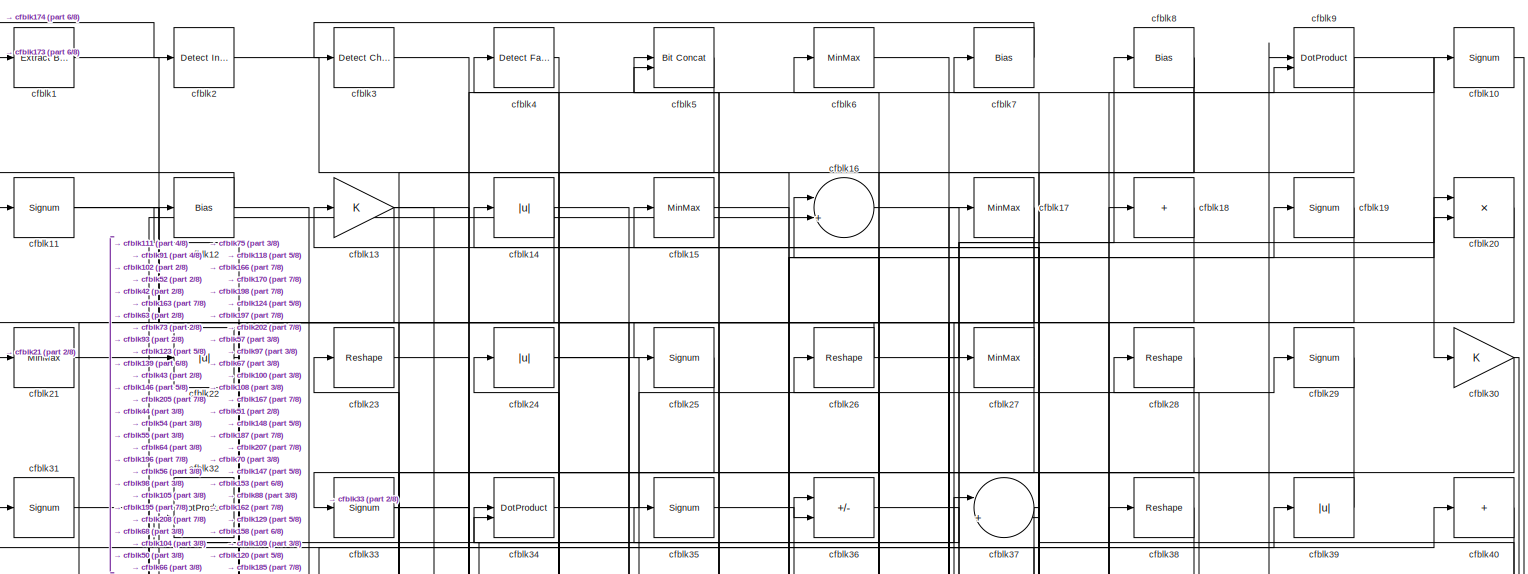
[diagram: root canvas - part 1/8, full width, top band]
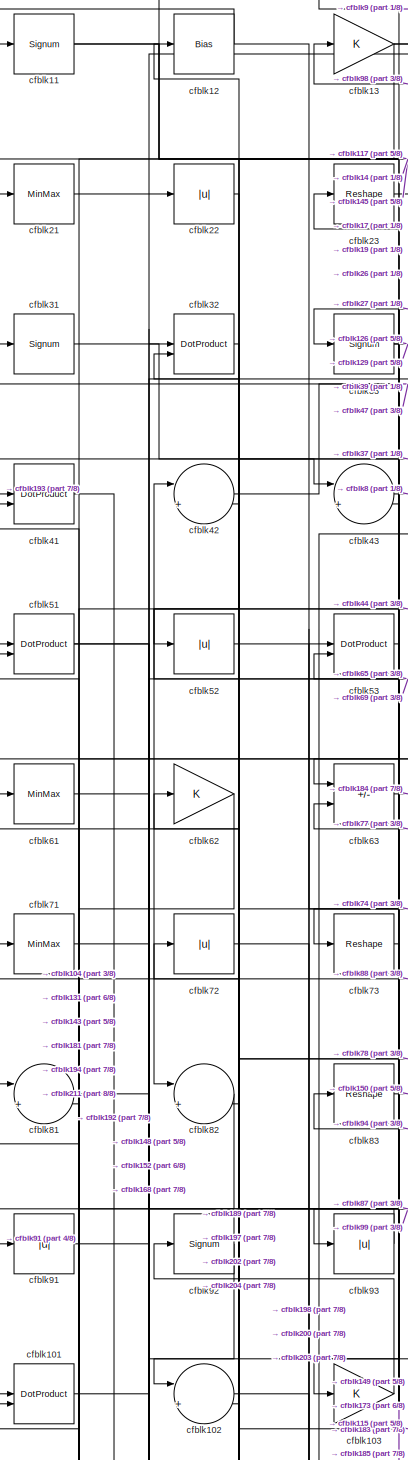
[diagram: root canvas - part 2/8, top left region]
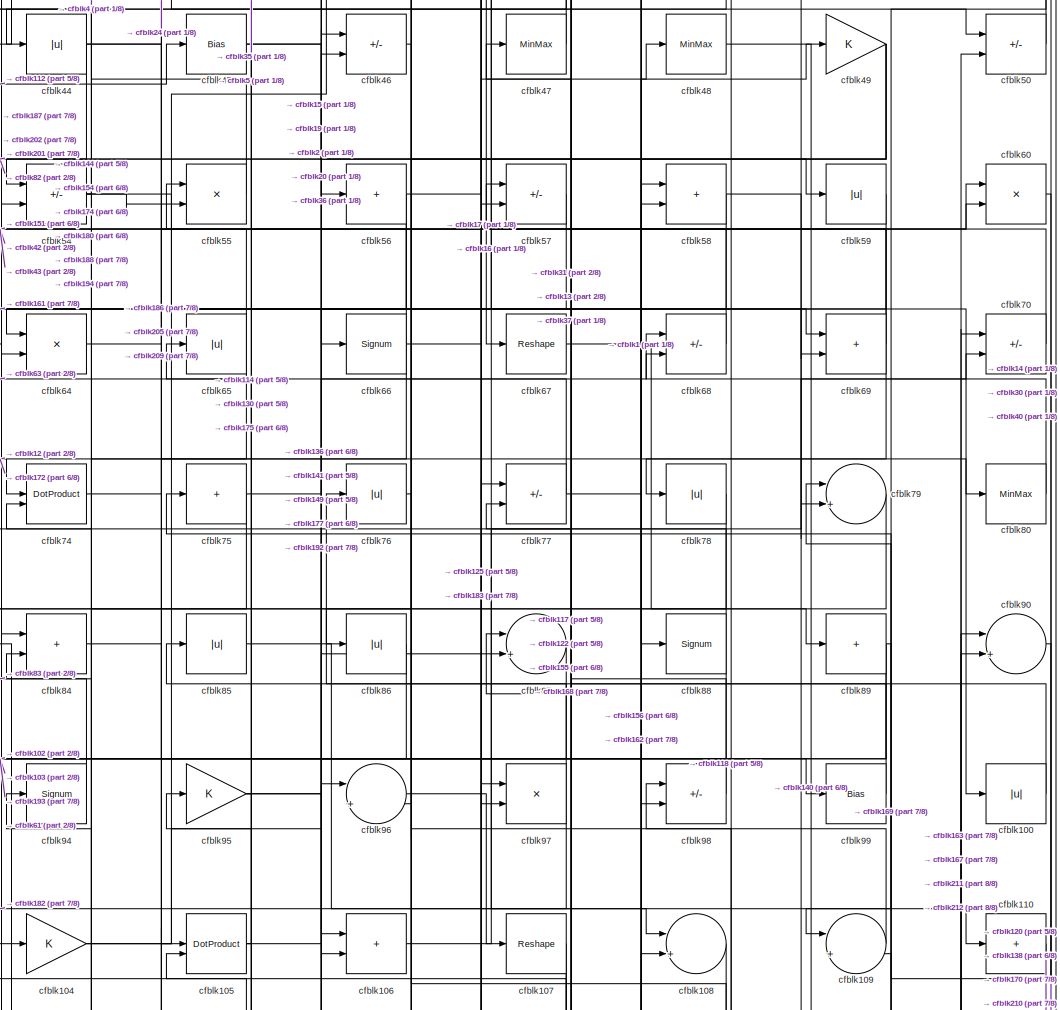
[diagram: root canvas - part 3/8, central region]
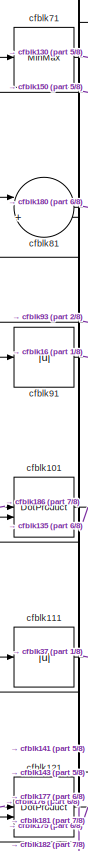
[diagram: root canvas - part 4/8, middle left region]
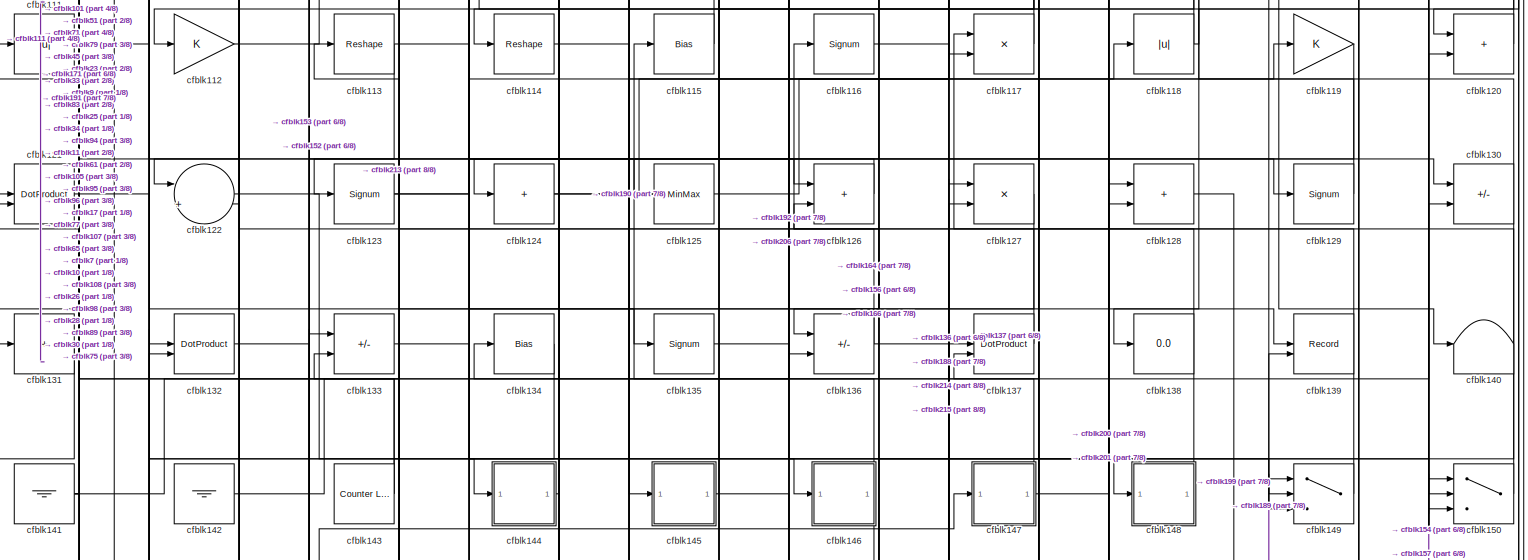
[diagram: root canvas - part 5/8, full width, middle band]
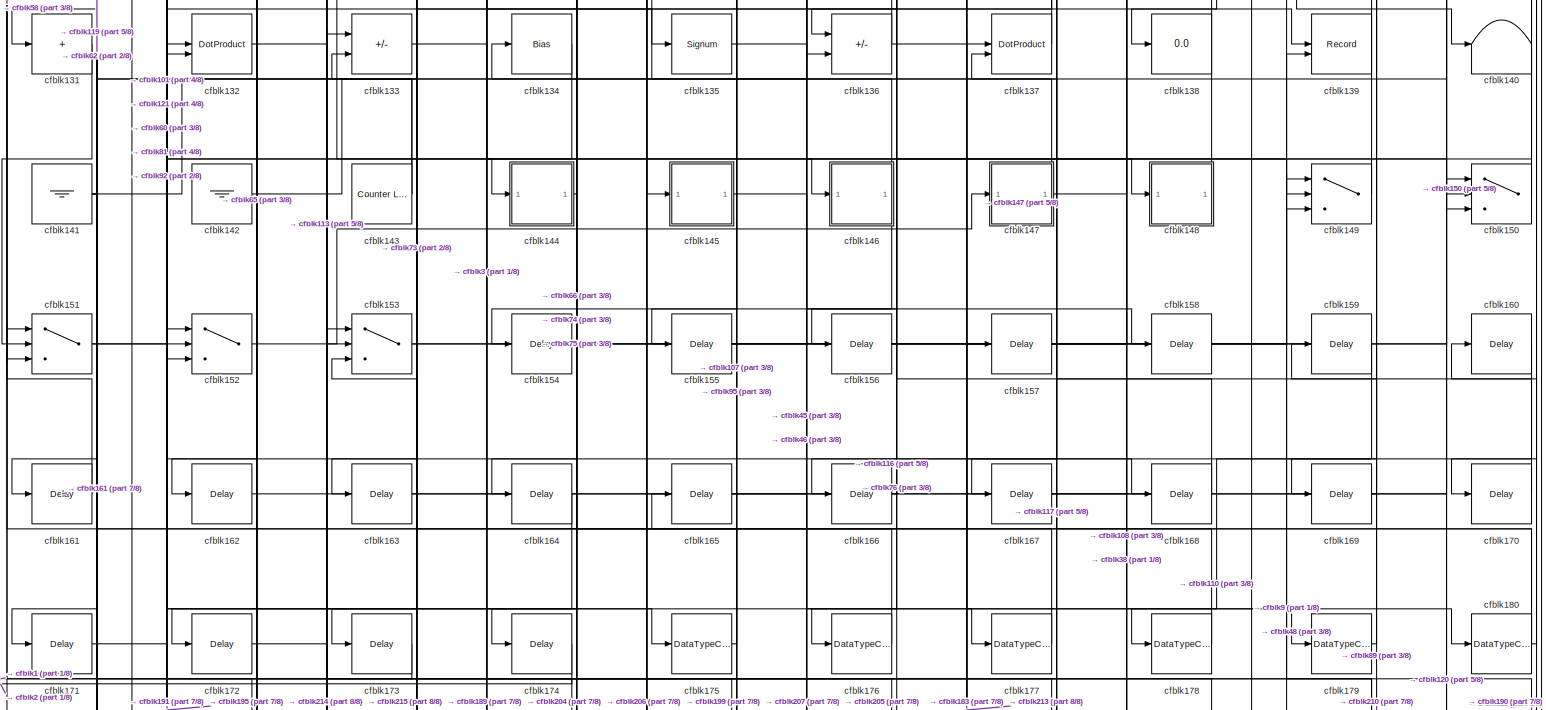
[diagram: root canvas - part 6/8, full width, bottom band]
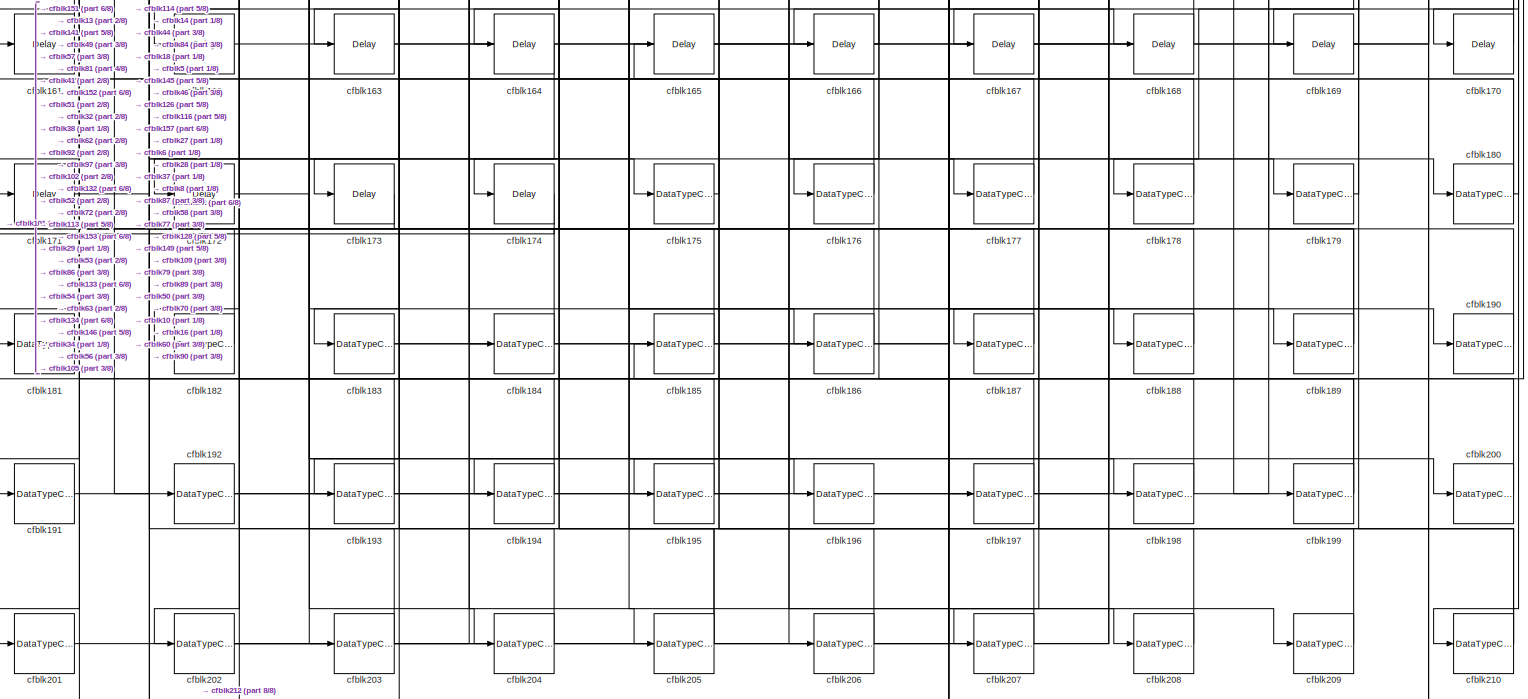
[diagram: root canvas - part 7/8, full width, bottom band]
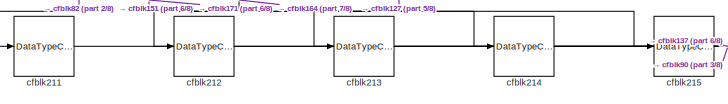
[diagram: root canvas - part 8/8, bottom left region]
MODEL slx_5d433ac98d97
KIND model
CONFIG AbsTol = auto
CONFIG EnableMultiTasking = off
CONFIG FixedStep = auto
CONFIG MaxStep = auto
CONFIG MinStep = auto
CONFIG RelTol = 1e-3
CONFIG SampleTimeConstraint = Unconstrained
CONFIG SolverName = VariableStepAuto
CONFIG StartTime = 0.0
CONFIG StopTime = 10.0
BLOCK [Reference] cfblk1  REF=simulink/Logic and Bit
Operations/Extract Bits
  LibrarySourceBlock = hdlsllib/Logic and Bit\nOperations/Extract Bits
  SourceBlock = simulink/Logic and Bit\nOperations/Extract Bits
  SourceType = Extract Bits
BLOCK [Signum] cfblk10
BLOCK [Abs] cfblk100
  SaturateOnIntegerOverflow = off
BLOCK [DotProduct] cfblk101
  OutDataTypeStr = Inherit: Inherit via internal rule
BLOCK [Sum] cfblk102
  Inputs = |++
BLOCK [Gain] cfblk103
BLOCK [Gain] cfblk104
BLOCK [DotProduct] cfblk105
  OutDataTypeStr = Inherit: Inherit via internal rule
BLOCK [Sum] cfblk106
  IconShape = rectangular
BLOCK [Reshape] cfblk107
BLOCK [Sum] cfblk108
  Inputs = |++
BLOCK [Sum] cfblk109
  Inputs = |++
BLOCK [Signum] cfblk11
BLOCK [Sum] cfblk110
  IconShape = rectangular
  Inputs = +
BLOCK [Abs] cfblk111
  SaturateOnIntegerOverflow = off
BLOCK [Gain] cfblk112
BLOCK [Reshape] cfblk113
BLOCK [Reshape] cfblk114
BLOCK [Bias] cfblk115
  Bias = 0.0
  SaturateOnIntegerOverflow = off
BLOCK [Signum] cfblk116
BLOCK [Product] cfblk117
  Inputs = */
  RndMeth = Zero
  SaturateOnIntegerOverflow = on
BLOCK [Abs] cfblk118
  SaturateOnIntegerOverflow = off
BLOCK [Gain] cfblk119
BLOCK [Bias] cfblk12
  Bias = 0.0
  SaturateOnIntegerOverflow = off
BLOCK [Sum] cfblk120
  IconShape = rectangular
BLOCK [DotProduct] cfblk121
  OutDataTypeStr = Inherit: Inherit via internal rule
BLOCK [Sum] cfblk122
  Inputs = |++
BLOCK [Signum] cfblk123
BLOCK [Sum] cfblk124
  IconShape = rectangular
  Inputs = +
BLOCK [MinMax] cfblk125
BLOCK [Sum] cfblk126
  IconShape = rectangular
BLOCK [Product] cfblk127
  Inputs = */
  RndMeth = Zero
  SaturateOnIntegerOverflow = on
BLOCK [Sum] cfblk128
  IconShape = rectangular
BLOCK [Signum] cfblk129
BLOCK [Gain] cfblk13
BLOCK [Sum] cfblk130
  IconShape = rectangular
  Inputs = +-
BLOCK [Sum] cfblk131
  IconShape = rectangular
  Inputs = +
BLOCK [DotProduct] cfblk132
  OutDataTypeStr = Inherit: Inherit via internal rule
BLOCK [Sum] cfblk133
  IconShape = rectangular
  Inputs = +-
BLOCK [Bias] cfblk134
  Bias = 0.0
  SaturateOnIntegerOverflow = off
BLOCK [Signum] cfblk135
BLOCK [Sum] cfblk136
  IconShape = rectangular
  Inputs = +-
BLOCK [DotProduct] cfblk137
  OutDataTypeStr = Inherit: Inherit via internal rule
BLOCK [Display] cfblk138
  Decimation = 1
BLOCK [Record] cfblk139
  CompatibilityTag = XY
  FileSettingsInternal = {"entries":[{"content":{"excelSettings":{"content":{},"type":"Streamout.ExcelSettings"}},"type":"Streamout.FileSettingStorage","uuid":""}],"packageUris":["http:\/\/schema.mathworks.com\/mf0\/streamout_blocks\/R2020a"],"version":"1.0"}
  Layout = [1 1]
  SignalsInternal = {"entries":[{"content":{"signals":[{"content":{"blockPath":[],"dimensions":[1],"domain":"","lineColor":"#a2142f","plots":[1],"port":1,"signalID":2556,"signalName":"XY Graph:1"},"type":"RecordBlkView.Signal","uuid":""},{"content":{"blockPath":[],"dimensions":[1],"domain":"","lineColor":"#139fff","plots":[1],"port":2,"signalID":2559,"signalName":"XY Graph:2"},"type":"RecordBlkView.Signal","uuid":""}...<+146ch>
  VisualizationBindings = {"xyplotplugin":{"info":[{"series":[{"bindingParametersList":[{"parameter":"X-Axis","signalID":2556,"signalName":"XY Graph:1"},{"parameter":"Y-Axis","signalID":2559,"signalName":"XY Graph:2"}],"seriesID":63475}],"subplotID":1}]}}
  st = -1
BLOCK [Abs] cfblk14
  SaturateOnIntegerOverflow = off
BLOCK [Terminator] cfblk140
BLOCK [Ground] cfblk141
BLOCK [Ground] cfblk142
BLOCK [Reference] cfblk143  REF=hdlsllib/Sources/Counter
Limited
  SourceBlock = hdlsllib/Sources/Counter\nLimited
  SourceType = Counter Limited
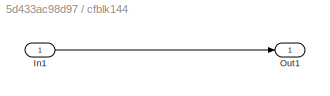
BLOCK [SubSystem] cfblk144
  LibrarySourceBlock = hdlsllib/Ports &\nSubsystems/Subsystem
BLOCK [Inport] cfblk144/In1
BLOCK [Outport] cfblk144/Out1
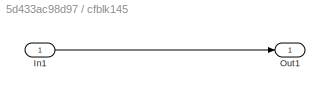
BLOCK [SubSystem] cfblk145
  LibrarySourceBlock = hdlsllib/Ports &\nSubsystems/Subsystem
BLOCK [Inport] cfblk145/In1
BLOCK [Outport] cfblk145/Out1
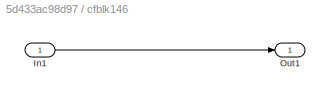
BLOCK [SubSystem] cfblk146
  LibrarySourceBlock = hdlsllib/Ports &\nSubsystems/Subsystem
BLOCK [Inport] cfblk146/In1
BLOCK [Outport] cfblk146/Out1
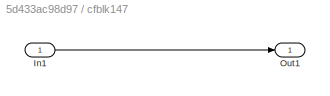
BLOCK [SubSystem] cfblk147
  LibrarySourceBlock = hdlsllib/Ports &\nSubsystems/Subsystem
BLOCK [Inport] cfblk147/In1
BLOCK [Outport] cfblk147/Out1
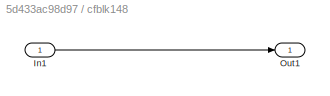
BLOCK [SubSystem] cfblk148
  LibrarySourceBlock = hdlsllib/Ports &\nSubsystems/Subsystem
BLOCK [Inport] cfblk148/In1
BLOCK [Outport] cfblk148/Out1
BLOCK [Switch] cfblk149
  InputSameDT = off
  SaturateOnIntegerOverflow = off
BLOCK [MinMax] cfblk15
BLOCK [Switch] cfblk150
  InputSameDT = off
  SaturateOnIntegerOverflow = off
BLOCK [Switch] cfblk151
  InputSameDT = off
  SaturateOnIntegerOverflow = off
BLOCK [Switch] cfblk152
  InputSameDT = off
  SaturateOnIntegerOverflow = off
BLOCK [Switch] cfblk153
  InputSameDT = off
  SaturateOnIntegerOverflow = off
BLOCK [Delay] cfblk154
  InputPortMap = u0
  SampleTime = 1
BLOCK [Delay] cfblk155
  InputPortMap = u0
  SampleTime = 1
BLOCK [Delay] cfblk156
  InputPortMap = u0
  SampleTime = 1
BLOCK [Delay] cfblk157
  InputPortMap = u0
  SampleTime = 1
BLOCK [Delay] cfblk158
  InputPortMap = u0
  SampleTime = 1
BLOCK [Delay] cfblk159
  InputPortMap = u0
  SampleTime = 1
BLOCK [Sum] cfblk16
  Inputs = |++
BLOCK [Delay] cfblk160
  InputPortMap = u0
  SampleTime = 1
BLOCK [Delay] cfblk161
  InputPortMap = u0
  SampleTime = 1
BLOCK [Delay] cfblk162
  InputPortMap = u0
  SampleTime = 1
BLOCK [Delay] cfblk163
  InputPortMap = u0
  SampleTime = 1
BLOCK [Delay] cfblk164
  InputPortMap = u0
  SampleTime = 1
BLOCK [Delay] cfblk165
  InputPortMap = u0
  SampleTime = 1
BLOCK [Delay] cfblk166
  InputPortMap = u0
  SampleTime = 1
BLOCK [Delay] cfblk167
  InputPortMap = u0
  SampleTime = 1
BLOCK [Delay] cfblk168
  InputPortMap = u0
  SampleTime = 1
BLOCK [Delay] cfblk169
  InputPortMap = u0
  SampleTime = 1
BLOCK [MinMax] cfblk17
BLOCK [Delay] cfblk170
  InputPortMap = u0
  SampleTime = 1
BLOCK [Delay] cfblk171
  InputPortMap = u0
  SampleTime = 1
BLOCK [Delay] cfblk172
  InputPortMap = u0
  SampleTime = 1
BLOCK [Delay] cfblk173
  InputPortMap = u0
  SampleTime = 1
BLOCK [Delay] cfblk174
  InputPortMap = u0
  SampleTime = 1
BLOCK [DataTypeConversion] cfblk175
  OutDataTypeStr = uint8
  RndMeth = Floor
  SaturateOnIntegerOverflow = off
BLOCK [DataTypeConversion] cfblk176
  OutDataTypeStr = uint8
  RndMeth = Floor
  SaturateOnIntegerOverflow = off
BLOCK [DataTypeConversion] cfblk177
  OutDataTypeStr = uint8
  RndMeth = Floor
  SaturateOnIntegerOverflow = off
BLOCK [DataTypeConversion] cfblk178
  OutDataTypeStr = uint8
  RndMeth = Floor
  SaturateOnIntegerOverflow = off
BLOCK [DataTypeConversion] cfblk179
  OutDataTypeStr = uint8
  RndMeth = Floor
  SaturateOnIntegerOverflow = off
BLOCK [Sum] cfblk18
  IconShape = rectangular
  Inputs = +
BLOCK [DataTypeConversion] cfblk180
  RndMeth = Floor
  SaturateOnIntegerOverflow = off
BLOCK [DataTypeConversion] cfblk181
  OutDataTypeStr = uint8
  RndMeth = Floor
  SaturateOnIntegerOverflow = off
BLOCK [DataTypeConversion] cfblk182
  OutDataTypeStr = uint8
  RndMeth = Floor
  SaturateOnIntegerOverflow = off
BLOCK [DataTypeConversion] cfblk183
  RndMeth = Floor
  SaturateOnIntegerOverflow = off
BLOCK [DataTypeConversion] cfblk184
  OutDataTypeStr = uint8
  RndMeth = Floor
  SaturateOnIntegerOverflow = off
BLOCK [DataTypeConversion] cfblk185
  OutDataTypeStr = uint8
  RndMeth = Floor
  SaturateOnIntegerOverflow = off
BLOCK [DataTypeConversion] cfblk186
  OutDataTypeStr = uint8
  RndMeth = Floor
  SaturateOnIntegerOverflow = off
BLOCK [DataTypeConversion] cfblk187
  OutDataTypeStr = uint8
  RndMeth = Floor
  SaturateOnIntegerOverflow = off
BLOCK [DataTypeConversion] cfblk188
  OutDataTypeStr = uint8
  RndMeth = Floor
  SaturateOnIntegerOverflow = off
BLOCK [DataTypeConversion] cfblk189
  RndMeth = Floor
  SaturateOnIntegerOverflow = off
BLOCK [Signum] cfblk19
BLOCK [DataTypeConversion] cfblk190
  OutDataTypeStr = uint8
  RndMeth = Floor
  SaturateOnIntegerOverflow = off
BLOCK [DataTypeConversion] cfblk191
  OutDataTypeStr = uint8
  RndMeth = Floor
  SaturateOnIntegerOverflow = off
BLOCK [DataTypeConversion] cfblk192
  RndMeth = Floor
  SaturateOnIntegerOverflow = off
BLOCK [DataTypeConversion] cfblk193
  OutDataTypeStr = uint8
  RndMeth = Floor
  SaturateOnIntegerOverflow = off
BLOCK [DataTypeConversion] cfblk194
  OutDataTypeStr = uint8
  RndMeth = Floor
  SaturateOnIntegerOverflow = off
BLOCK [DataTypeConversion] cfblk195
  OutDataTypeStr = uint8
  RndMeth = Floor
  SaturateOnIntegerOverflow = off
BLOCK [DataTypeConversion] cfblk196
  OutDataTypeStr = uint8
  RndMeth = Floor
  SaturateOnIntegerOverflow = off
BLOCK [DataTypeConversion] cfblk197
  OutDataTypeStr = uint8
  RndMeth = Floor
  SaturateOnIntegerOverflow = off
BLOCK [DataTypeConversion] cfblk198
  OutDataTypeStr = uint8
  RndMeth = Floor
  SaturateOnIntegerOverflow = off
BLOCK [DataTypeConversion] cfblk199
  RndMeth = Floor
  SaturateOnIntegerOverflow = off
BLOCK [Reference] cfblk2  REF=simulink/Logic and Bit
Operations/Detect
Increase
  LibrarySourceBlock = hdlsllib/Logic and Bit\nOperations/Detect\nIncrease
  SourceBlock = simulink/Logic and Bit\nOperations/Detect\nIncrease
  SourceType = Detect Increase
BLOCK [Product] cfblk20
  Inputs = */
  RndMeth = Zero
  SaturateOnIntegerOverflow = on
BLOCK [DataTypeConversion] cfblk200
  OutDataTypeStr = uint8
  RndMeth = Floor
  SaturateOnIntegerOverflow = off
BLOCK [DataTypeConversion] cfblk201
  OutDataTypeStr = uint8
  RndMeth = Floor
  SaturateOnIntegerOverflow = off
BLOCK [DataTypeConversion] cfblk202
  RndMeth = Floor
  SaturateOnIntegerOverflow = off
BLOCK [DataTypeConversion] cfblk203
  OutDataTypeStr = uint8
  RndMeth = Floor
  SaturateOnIntegerOverflow = off
BLOCK [DataTypeConversion] cfblk204
  OutDataTypeStr = uint8
  RndMeth = Floor
  SaturateOnIntegerOverflow = off
BLOCK [DataTypeConversion] cfblk205
  RndMeth = Floor
  SaturateOnIntegerOverflow = off
BLOCK [DataTypeConversion] cfblk206
  OutDataTypeStr = uint8
  RndMeth = Floor
  SaturateOnIntegerOverflow = off
BLOCK [DataTypeConversion] cfblk207
  OutDataTypeStr = uint8
  RndMeth = Floor
  SaturateOnIntegerOverflow = off
BLOCK [DataTypeConversion] cfblk208
  OutDataTypeStr = uint8
  RndMeth = Floor
  SaturateOnIntegerOverflow = off
BLOCK [DataTypeConversion] cfblk209
  OutDataTypeStr = uint8
  RndMeth = Floor
  SaturateOnIntegerOverflow = off
BLOCK [MinMax] cfblk21
BLOCK [DataTypeConversion] cfblk210
  RndMeth = Floor
  SaturateOnIntegerOverflow = off
BLOCK [DataTypeConversion] cfblk211
  OutDataTypeStr = uint8
  RndMeth = Floor
  SaturateOnIntegerOverflow = off
BLOCK [DataTypeConversion] cfblk212
  OutDataTypeStr = uint8
  RndMeth = Floor
  SaturateOnIntegerOverflow = off
BLOCK [DataTypeConversion] cfblk213
  OutDataTypeStr = uint8
  RndMeth = Floor
  SaturateOnIntegerOverflow = off
BLOCK [DataTypeConversion] cfblk214
  OutDataTypeStr = uint8
  RndMeth = Floor
  SaturateOnIntegerOverflow = off
BLOCK [DataTypeConversion] cfblk215
  OutDataTypeStr = uint8
  RndMeth = Floor
  SaturateOnIntegerOverflow = off
BLOCK [Abs] cfblk22
  SaturateOnIntegerOverflow = off
BLOCK [Reshape] cfblk23
BLOCK [Abs] cfblk24
  SaturateOnIntegerOverflow = off
BLOCK [Signum] cfblk25
BLOCK [Reshape] cfblk26
BLOCK [MinMax] cfblk27
BLOCK [Reshape] cfblk28
BLOCK [Signum] cfblk29
BLOCK [Reference] cfblk3  REF=simulink/Logic and Bit
Operations/Detect
Change
  LibrarySourceBlock = hdlsllib/Logic and Bit\nOperations/Detect\nChange
  SourceBlock = simulink/Logic and Bit\nOperations/Detect\nChange
  SourceType = Detect Change
BLOCK [Gain] cfblk30
BLOCK [Signum] cfblk31
BLOCK [DotProduct] cfblk32
  OutDataTypeStr = Inherit: Inherit via internal rule
BLOCK [Signum] cfblk33
BLOCK [DotProduct] cfblk34
  OutDataTypeStr = Inherit: Inherit via internal rule
BLOCK [Signum] cfblk35
BLOCK [Sum] cfblk36
  IconShape = rectangular
  Inputs = +-
BLOCK [Sum] cfblk37
  Inputs = |++
BLOCK [Reshape] cfblk38
BLOCK [Abs] cfblk39
  SaturateOnIntegerOverflow = off
BLOCK [Reference] cfblk4  REF=hdlsllib/Logic and Bit
Operations/Detect Fall
Negative
  SourceBlock = hdlsllib/Logic and Bit\nOperations/Detect Fall\nNegative
  SourceType = Detect Fall Negative
BLOCK [Sum] cfblk40
  IconShape = rectangular
  Inputs = +
BLOCK [DotProduct] cfblk41
  OutDataTypeStr = Inherit: Inherit via internal rule
BLOCK [Sum] cfblk42
  Inputs = |++
BLOCK [Sum] cfblk43
  Inputs = |++
BLOCK [Abs] cfblk44
  SaturateOnIntegerOverflow = off
BLOCK [Bias] cfblk45
  Bias = 0.0
  SaturateOnIntegerOverflow = off
BLOCK [Sum] cfblk46
  IconShape = rectangular
  Inputs = +-
BLOCK [MinMax] cfblk47
BLOCK [MinMax] cfblk48
BLOCK [Gain] cfblk49
BLOCK [Reference] cfblk5  REF=hdlsllib/Logic and Bit
Operations/Bit Concat
  SourceBlock = hdlsllib/Logic and Bit\nOperations/Bit Concat
  SourceType = Bit Concat
BLOCK [Sum] cfblk50
  IconShape = rectangular
  Inputs = +-
BLOCK [DotProduct] cfblk51
  OutDataTypeStr = Inherit: Inherit via internal rule
BLOCK [Abs] cfblk52
  SaturateOnIntegerOverflow = off
BLOCK [DotProduct] cfblk53
  OutDataTypeStr = Inherit: Inherit via internal rule
BLOCK [Sum] cfblk54
  IconShape = rectangular
  Inputs = +-
BLOCK [Product] cfblk55
  Inputs = */
  RndMeth = Zero
  SaturateOnIntegerOverflow = on
BLOCK [Sum] cfblk56
  IconShape = rectangular
  Inputs = +
BLOCK [Sum] cfblk57
  IconShape = rectangular
  Inputs = +-
BLOCK [Sum] cfblk58
  IconShape = rectangular
BLOCK [Abs] cfblk59
  SaturateOnIntegerOverflow = off
BLOCK [MinMax] cfblk6
BLOCK [Product] cfblk60
  Inputs = */
  RndMeth = Zero
  SaturateOnIntegerOverflow = on
BLOCK [MinMax] cfblk61
BLOCK [Gain] cfblk62
BLOCK [Sum] cfblk63
  IconShape = rectangular
  Inputs = +-
BLOCK [Product] cfblk64
  Inputs = */
  RndMeth = Zero
  SaturateOnIntegerOverflow = on
BLOCK [Abs] cfblk65
  SaturateOnIntegerOverflow = off
BLOCK [Signum] cfblk66
BLOCK [Reshape] cfblk67
BLOCK [Sum] cfblk68
  IconShape = rectangular
  Inputs = +-
BLOCK [Sum] cfblk69
  IconShape = rectangular
BLOCK [Bias] cfblk7
  Bias = 0.0
  SaturateOnIntegerOverflow = off
BLOCK [Sum] cfblk70
  IconShape = rectangular
  Inputs = +-
BLOCK [MinMax] cfblk71
BLOCK [Abs] cfblk72
  SaturateOnIntegerOverflow = off
BLOCK [Reshape] cfblk73
BLOCK [DotProduct] cfblk74
  OutDataTypeStr = Inherit: Inherit via internal rule
BLOCK [Sum] cfblk75
  IconShape = rectangular
  Inputs = +
BLOCK [Abs] cfblk76
  SaturateOnIntegerOverflow = off
BLOCK [Sum] cfblk77
  IconShape = rectangular
  Inputs = +-
BLOCK [Abs] cfblk78
  SaturateOnIntegerOverflow = off
BLOCK [Sum] cfblk79
  Inputs = |++
BLOCK [Bias] cfblk8
  Bias = 0.0
  SaturateOnIntegerOverflow = off
BLOCK [MinMax] cfblk80
BLOCK [Sum] cfblk81
  Inputs = |++
BLOCK [Sum] cfblk82
  Inputs = |++
BLOCK [Reshape] cfblk83
BLOCK [Sum] cfblk84
  IconShape = rectangular
BLOCK [Abs] cfblk85
  SaturateOnIntegerOverflow = off
BLOCK [Abs] cfblk86
  SaturateOnIntegerOverflow = off
BLOCK [Sum] cfblk87
  Inputs = |++
BLOCK [Signum] cfblk88
BLOCK [Sum] cfblk89
  IconShape = rectangular
  Inputs = +
BLOCK [DotProduct] cfblk9
  OutDataTypeStr = Inherit: Inherit via internal rule
BLOCK [Sum] cfblk90
  Inputs = |++
BLOCK [Abs] cfblk91
  SaturateOnIntegerOverflow = off
BLOCK [Signum] cfblk92
BLOCK [Abs] cfblk93
  SaturateOnIntegerOverflow = off
BLOCK [Signum] cfblk94
BLOCK [Gain] cfblk95
BLOCK [Sum] cfblk96
  Inputs = |++
BLOCK [Product] cfblk97
  Inputs = */
  RndMeth = Zero
  SaturateOnIntegerOverflow = on
BLOCK [Sum] cfblk98
  IconShape = rectangular
  Inputs = +-
BLOCK [Bias] cfblk99
  Bias = 0.0
  SaturateOnIntegerOverflow = off
LINE cfblk100:1 -> cfblk57:1
LINE cfblk101:1 -> cfblk135:1
LINE cfblk102:1 -> cfblk198:1
LINE cfblk103:1 -> cfblk72:1
NET cfblk104:1 -> cfblk20:2, cfblk36:1
NET cfblk105:1 -> cfblk5:1, cfblk68:2
LINE cfblk106:1 -> cfblk70:2
NET cfblk107:1 -> cfblk122:1, cfblk155:1
LINE cfblk108:1 -> cfblk125:1
LINE cfblk109:1 -> cfblk15:1
LINE cfblk10:1 -> cfblk185:1
LINE cfblk110:1 -> cfblk138:1
LINE cfblk111:1 -> cfblk37:1
LINE cfblk112:1 -> cfblk45:1
NET cfblk113:1 -> cfblk146:1, cfblk153:2
LINE cfblk114:1 -> cfblk190:1
LINE cfblk115:1 -> cfblk61:1
LINE cfblk116:1 -> cfblk188:1
LINE cfblk117:1 -> cfblk65:1
NET cfblk118:1 -> cfblk26:1, cfblk98:1
LINE cfblk119:1 -> cfblk171:1
NET cfblk11:1 -> cfblk117:2, cfblk145:1
LINE cfblk120:1 -> cfblk75:1
LINE cfblk121:1 -> cfblk175:1
LINE cfblk122:1 -> cfblk144:1
NET cfblk123:1 -> cfblk119:1, cfblk9:2
NET cfblk124:1 -> cfblk118:1, cfblk17:1
LINE cfblk125:1 -> cfblk77:1
LINE cfblk126:1 -> cfblk123:1
LINE cfblk127:1 -> cfblk213:1
LINE cfblk128:1 -> cfblk199:1
LINE cfblk129:1 -> cfblk28:1
NET cfblk12:1 -> cfblk11:1, cfblk74:1
NET cfblk130:1 -> cfblk105:2, cfblk156:1
LINE cfblk131:1 -> cfblk151:2
LINE cfblk132:1 -> cfblk189:1
LINE cfblk133:1 -> cfblk205:1
LINE cfblk134:1 -> cfblk152:3
LINE cfblk135:1 -> cfblk158:1
NET cfblk136:1 -> cfblk116:1, cfblk179:1
LINE cfblk137:1 -> cfblk117:1
NET cfblk13:1 -> cfblk104:1, cfblk181:1, cfblk69:2
NET cfblk141:1 -> cfblk101:2, cfblk191:1, cfblk96:1
LINE cfblk142:1 -> cfblk130:2
NET cfblk143:1 -> cfblk111:1, cfblk51:1
LINE cfblk144/In1:1 -> cfblk144/Out1:1
LINE cfblk144:1 -> cfblk94:1
LINE cfblk145/In1:1 -> cfblk145/Out1:1
LINE cfblk145:1 -> cfblk206:1
LINE cfblk146/In1:1 -> cfblk146/Out1:1
NET cfblk146:1 -> cfblk164:1, cfblk34:1
LINE cfblk147/In1:1 -> cfblk147/Out1:1
NET cfblk147:1 -> cfblk10:1, cfblk115:1
LINE cfblk148/In1:1 -> cfblk148/Out1:1
LINE cfblk148:1 -> cfblk7:1
LINE cfblk149:1 -> cfblk23:1
NET cfblk14:1 -> cfblk196:1, cfblk52:1
LINE cfblk150:1 -> cfblk71:1
NET cfblk151:1 -> cfblk214:1, cfblk60:2
LINE cfblk152:1 -> cfblk147:1
NET cfblk153:1 -> cfblk139:2, cfblk38:1
LINE cfblk154:1 -> cfblk120:2
LINE cfblk155:1 -> cfblk46:1
LINE cfblk156:1 -> cfblk108:2
LINE cfblk157:1 -> cfblk150:1
LINE cfblk158:1 -> cfblk9:1
LINE cfblk159:1 -> cfblk178:1
LINE cfblk15:1 -> cfblk50:1
LINE cfblk160:1 -> cfblk176:1
LINE cfblk161:1 -> cfblk151:1
LINE cfblk162:1 -> cfblk58:1
LINE cfblk163:1 -> cfblk50:2
LINE cfblk164:1 -> cfblk212:1
LINE cfblk165:1 -> cfblk208:1
LINE cfblk166:1 -> cfblk126:2
LINE cfblk167:1 -> cfblk70:1
LINE cfblk168:1 -> cfblk77:2
LINE cfblk169:1 -> cfblk79:1
LINE cfblk16:1 -> cfblk108:1
LINE cfblk170:1 -> cfblk16:1
LINE cfblk171:1 -> cfblk215:1
LINE cfblk172:1 -> cfblk204:1
LINE cfblk173:1 -> cfblk1:1
LINE cfblk174:1 -> cfblk2:1
LINE cfblk175:1 -> cfblk95:1
LINE cfblk176:1 -> cfblk121:1
LINE cfblk177:1 -> cfblk121:2
LINE cfblk178:1 -> cfblk137:2
LINE cfblk179:1 -> cfblk159:1
NET cfblk17:1 -> cfblk102:1, cfblk57:2
NET cfblk180:1 -> cfblk153:3, cfblk160:1, cfblk74:2
LINE cfblk181:1 -> cfblk81:1
LINE cfblk182:1 -> cfblk81:2
NET cfblk183:1 -> cfblk157:1, cfblk97:1
LINE cfblk184:1 -> cfblk53:1
LINE cfblk185:1 -> cfblk53:2
LINE cfblk186:1 -> cfblk101:1
LINE cfblk187:1 -> cfblk84:1
LINE cfblk188:1 -> cfblk84:2
NET cfblk189:1 -> cfblk149:1, cfblk62:1
LINE cfblk18:1 -> cfblk195:1
LINE cfblk190:1 -> cfblk132:1
LINE cfblk191:1 -> cfblk132:2
NET cfblk192:1 -> cfblk149:3, cfblk46:2
LINE cfblk193:1 -> cfblk41:1
LINE cfblk194:1 -> cfblk41:2
LINE cfblk195:1 -> cfblk152:1
LINE cfblk196:1 -> cfblk18:1
LINE cfblk197:1 -> cfblk92:1
LINE cfblk198:1 -> cfblk6:1
NET cfblk199:1 -> cfblk113:1, cfblk153:1
LINE cfblk19:1 -> cfblk93:1
LINE cfblk1:1 -> cfblk88:1
LINE cfblk200:1 -> cfblk128:1
LINE cfblk201:1 -> cfblk128:2
NET cfblk202:1 -> cfblk27:1, cfblk54:2, cfblk58:2
LINE cfblk203:1 -> cfblk32:1
LINE cfblk204:1 -> cfblk32:2
NET cfblk205:1 -> cfblk105:1, cfblk34:2
LINE cfblk206:1 -> cfblk133:1
LINE cfblk207:1 -> cfblk133:2
LINE cfblk208:1 -> cfblk5:2
LINE cfblk209:1 -> cfblk165:1
LINE cfblk20:1 -> cfblk67:1
NET cfblk210:1 -> cfblk109:2, cfblk134:1, cfblk87:1
LINE cfblk211:1 -> cfblk90:1
LINE cfblk212:1 -> cfblk90:2
LINE cfblk213:1 -> cfblk137:1
LINE cfblk214:1 -> cfblk127:1
LINE cfblk215:1 -> cfblk127:2
LINE cfblk21:1 -> cfblk22:1
LINE cfblk22:1 -> cfblk42:2
LINE cfblk23:1 -> cfblk150:3
NET cfblk24:1 -> cfblk56:1, cfblk98:2
LINE cfblk25:1 -> cfblk124:1
NET cfblk26:1 -> cfblk20:1, cfblk21:1
NET cfblk27:1 -> cfblk25:1, cfblk73:1
LINE cfblk28:1 -> cfblk207:1
LINE cfblk29:1 -> cfblk163:1
LINE cfblk2:1 -> cfblk66:1
NET cfblk30:1 -> cfblk120:1, cfblk97:2
LINE cfblk31:1 -> cfblk43:1
LINE cfblk32:1 -> cfblk202:1
NET cfblk33:1 -> cfblk126:1, cfblk129:1
LINE cfblk34:1 -> cfblk29:1
LINE cfblk35:1 -> cfblk36:2
LINE cfblk36:1 -> cfblk100:1
NET cfblk37:1 -> cfblk167:1, cfblk51:2
LINE cfblk38:1 -> cfblk162:1
LINE cfblk39:1 -> cfblk33:1
LINE cfblk3:1 -> cfblk139:1
LINE cfblk40:1 -> cfblk109:1
LINE cfblk41:1 -> cfblk192:1
LINE cfblk42:1 -> cfblk39:1
LINE cfblk43:1 -> cfblk8:1
NET cfblk44:1 -> cfblk209:1, cfblk69:1, cfblk82:1
NET cfblk45:1 -> cfblk177:1, cfblk59:1
LINE cfblk46:1 -> cfblk96:2
LINE cfblk47:1 -> cfblk31:1
LINE cfblk48:1 -> cfblk140:1
NET cfblk49:1 -> cfblk201:1, cfblk54:1, cfblk86:1
LINE cfblk4:1 -> cfblk64:1
LINE cfblk50:1 -> cfblk14:1
NET cfblk51:1 -> cfblk148:1, cfblk168:1
LINE cfblk52:1 -> cfblk200:1
LINE cfblk53:1 -> cfblk183:1
NET cfblk54:1 -> cfblk106:1, cfblk24:1, cfblk55:2
LINE cfblk55:1 -> cfblk4:1
NET cfblk56:1 -> cfblk106:2, cfblk194:1, cfblk48:1
LINE cfblk57:1 -> cfblk161:1
NET cfblk58:1 -> cfblk151:3, cfblk79:2
LINE cfblk59:1 -> cfblk64:2
LINE cfblk5:1 -> cfblk44:1
LINE cfblk60:1 -> cfblk170:1
LINE cfblk61:1 -> cfblk99:1
LINE cfblk62:1 -> cfblk131:1
LINE cfblk63:1 -> cfblk184:1
LINE cfblk64:1 -> cfblk60:1
NET cfblk65:1 -> cfblk172:1, cfblk42:1
NET cfblk66:1 -> cfblk174:1, cfblk40:1, cfblk55:1
LINE cfblk67:1 -> cfblk89:1
LINE cfblk68:1 -> cfblk35:1
NET cfblk69:1 -> cfblk43:2, cfblk47:1, cfblk78:1
LINE cfblk6:1 -> cfblk197:1
LINE cfblk70:1 -> cfblk37:2
LINE cfblk71:1 -> cfblk130:1
LINE cfblk72:1 -> cfblk203:1
LINE cfblk73:1 -> cfblk173:1
LINE cfblk74:1 -> cfblk80:1
NET cfblk75:1 -> cfblk154:1, cfblk19:1
LINE cfblk76:1 -> cfblk136:1
NET cfblk77:1 -> cfblk49:1, cfblk63:2
LINE cfblk78:1 -> cfblk82:2
LINE cfblk79:1 -> cfblk112:1
LINE cfblk7:1 -> cfblk3:1
LINE cfblk80:1 -> cfblk68:1
LINE cfblk81:1 -> cfblk180:1
LINE cfblk82:1 -> cfblk211:1
LINE cfblk83:1 -> cfblk150:2
LINE cfblk84:1 -> cfblk186:1
LINE cfblk85:1 -> cfblk110:1
LINE cfblk86:1 -> cfblk193:1
LINE cfblk87:1 -> cfblk102:2
NET cfblk88:1 -> cfblk103:1, cfblk12:1
NET cfblk89:1 -> cfblk122:2, cfblk136:2, cfblk169:1
NET cfblk8:1 -> cfblk166:1, cfblk187:1
LINE cfblk90:1 -> cfblk210:1
LINE cfblk91:1 -> cfblk16:2
LINE cfblk92:1 -> cfblk152:2
LINE cfblk93:1 -> cfblk91:1
LINE cfblk94:1 -> cfblk83:1
NET cfblk95:1 -> cfblk114:1, cfblk149:2, cfblk87:2
LINE cfblk96:1 -> cfblk107:1
NET cfblk97:1 -> cfblk182:1, cfblk76:1
LINE cfblk98:1 -> cfblk13:1
LINE cfblk99:1 -> cfblk85:1
NET cfblk9:1 -> cfblk30:1, cfblk63:1
note: NET lines group one-source signal fan-out (src -> all destinations, sorted); 1:1 wires keep LINE
